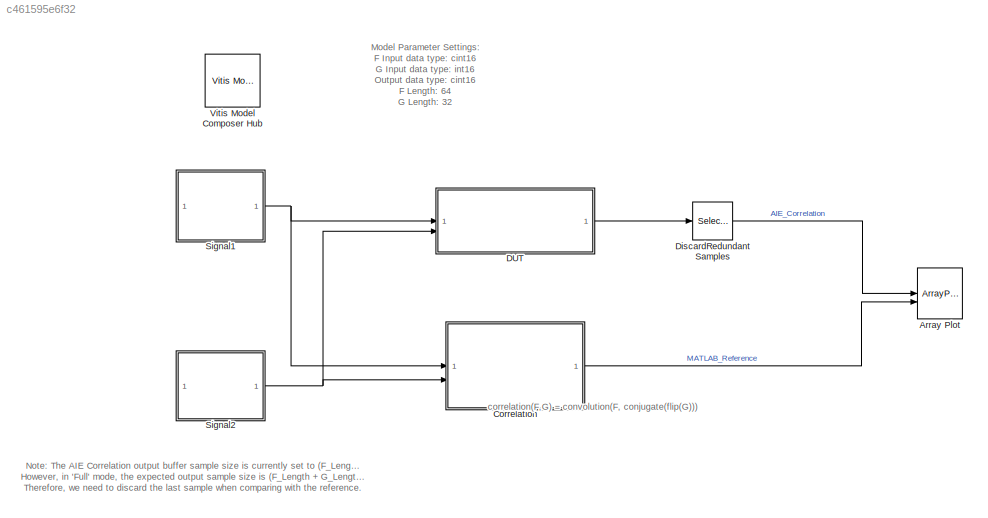
MODEL slx_c461595e6f32
KIND model
CONFIG AbsTol = auto
CONFIG EnableMultiTasking = off
CONFIG FixedStep = auto
CONFIG InitFcn = F_Length = 64;\nG_Length = 32;
CONFIG MaxStep = auto
CONFIG MinStep = auto
CONFIG PreLoadFcn = F_Length = 64;\nG_Length = 32;
CONFIG RelTol = 1e-3
CONFIG SampleTimeConstraint = Unconstrained
CONFIG SolverName = VariableStepAuto
CONFIG StartTime = 0.0
CONFIG StopTime = 2048/100e6
BLOCK [ArrayPlot] Array Plot
  GraphicalSettings = {"Style":{"BackgroundColor":[0.12941176470588237,0.12941176470588237,0.12941176470588237],"AxesColor":[0.07058823529411765,0.07058823529411765,0.07058823529411765],"LabelsColor":[0.8509803921568627,0.8509803921568627,0.8509803921568627],"PreserveColors":false,"Visible":[true,true,true,true],"LineStyle":["-","-","-","-"],"LineColor":[[1,0.9098039215686274,0.39215686274509803],[0.14901960784313725,0...<+788ch>
  NumInputPorts = 2
  ScopeFrameLocation = window
  ShowLegend = on
  WasSavedAsWebScope = on
  WindowPosition = [560.000000,350.000000,800.000000,500.000000,]
  YLimits = [-31.5 283.5]
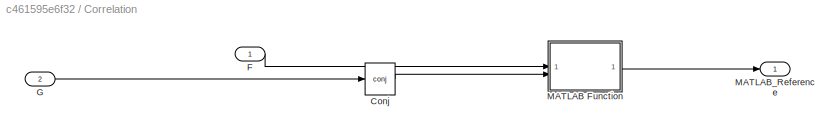
BLOCK [SubSystem] Correlation
BLOCK [Math] Correlation/Conj
  Operator = conj
BLOCK [Inport] Correlation/F
BLOCK [Inport] Correlation/G
  Port = 2
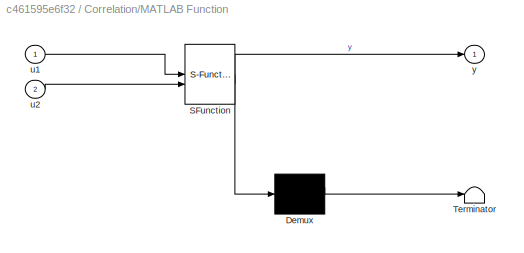
BLOCK [SubSystem] Correlation/MATLAB Function
  ErrorFcn = Stateflow.Translate.translate
  PermitHierarchicalResolution = ExplicitOnly
  SFBlockType = MATLAB Function
  TreatAsAtomicUnit = on
BLOCK [Demux] Correlation/MATLAB Function/ Demux 
  Outputs = 1
BLOCK [S-Function] Correlation/MATLAB Function/ SFunction 
  EnableBusSupport = on
  FunctionName = sf_sfun
  PortCounts = [2 2]
  SFcnIsStateOwnerBlock = off
  SFunctionDeploymentMode = off
  Tag = Stateflow S-Function 2
BLOCK [Terminator] Correlation/MATLAB Function/ Terminator 
BLOCK [Inport] Correlation/MATLAB Function/u1
BLOCK [Inport] Correlation/MATLAB Function/u2
  Port = 2
BLOCK [Outport] Correlation/MATLAB Function/y
BLOCK [Outport] Correlation/MATLAB_Reference
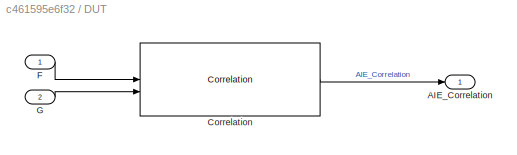
BLOCK [SubSystem] DUT
BLOCK [Outport] DUT/AIE_Correlation
BLOCK [Reference] DUT/Correlation  REF=aieDSP/Correlation
  SourceBlock = aieDSP/Correlation
  SourceType = Correlation
BLOCK [Inport] DUT/F
BLOCK [Inport] DUT/G
  Port = 2
BLOCK [Selector] DiscardRedundantSamples
  IndexOptions = Index vector (dialog)
  Indices = 1:1:(F_Length + G_Length - 1)
  InputPortWidth = F_Length + G_Length
  OutputSizes = 1
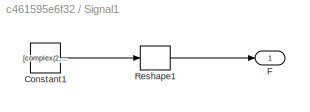
BLOCK [SubSystem] Signal1
BLOCK [Constant] Signal1/Constant1
  OutDataTypeStr = int16
  SampleTime = 1/100e6
  Value = [complex(2,3) 7*ones(1,63)]
BLOCK [Outport] Signal1/F
BLOCK [Reshape] Signal1/Reshape1
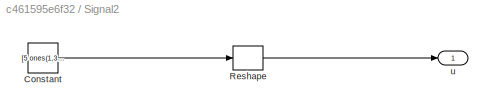
BLOCK [SubSystem] Signal2
BLOCK [Constant] Signal2/Constant
  OutDataTypeStr = int16
  SampleTime = 1/100e6
  Value = [5 ones(1,31)]
BLOCK [Reshape] Signal2/Reshape
BLOCK [Outport] Signal2/u
BLOCK [Reference] Vitis Model Composer Hub  REF=vmcUtilities/Vitis Model Composer Hub
  SourceBlock = vmcUtilities/Vitis Model Composer Hub
  SourceType = VMC Hub
  Tag = genX
  UserDataPersistent = on
ANNOTATION (root): Model Parameter Settings: F Input data type: cint16 G Input data type: int16 Output data type: cint16 F Length: 64 G Length: 32 Computation mode: Full
ANNOTATION (root): Note: The AIE Correlation output buffer sample size is currently set to (F_Length + G_Length) . However, in 'Full' mode, the expected output sample size is (F_Length + G_Length - 1). Therefore, we need to discard the last sample when comparing with the reference.
ANNOTATION (root): correlation(F,G) = convolution(F, conjugate(flip(G))​)
LINE Correlation/Conj:1 -> Correlation/MATLAB Function:2
LINE Correlation/F:1 -> Correlation/MATLAB Function:1
LINE Correlation/G:1 -> Correlation/Conj:1
LINE Correlation/MATLAB Function:1 -> Correlation/MATLAB_Reference:1
LINE Correlation:1 -> Array Plot:2
LINE DUT/Correlation:1 -> DUT/AIE_Correlation:1
LINE DUT/F:1 -> DUT/Correlation:1
LINE DUT/G:1 -> DUT/Correlation:2
LINE DUT:1 -> DiscardRedundantSamples:1
LINE DiscardRedundantSamples:1 -> Array Plot:1
LINE Signal1/Constant1:1 -> Signal1/Reshape1:1
LINE Signal1/Reshape1:1 -> Signal1/F:1
NET Signal1:1 -> Correlation:1, DUT:1
LINE Signal2/Constant:1 -> Signal2/Reshape:1
LINE Signal2/Reshape:1 -> Signal2/u:1
NET Signal2:1 -> Correlation:2, DUT:2
note: NET lines group one-source signal fan-out (src -> all destinations, sorted); 1:1 wires keep LINE
CHART Correlation/MATLAB Function states=1 transitions=1
  STATE_LABEL 'eML_blk_kernel()'
  STATE_LABEL "SCRIPT:\nfunction y = func(u1,u2)\n\ny = int16(conv(u1,flip(u2),'full'));\n\n"
CHART  states=0 transitions=0
